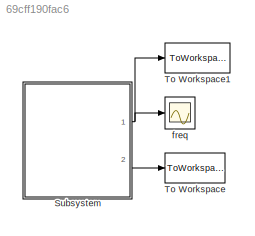
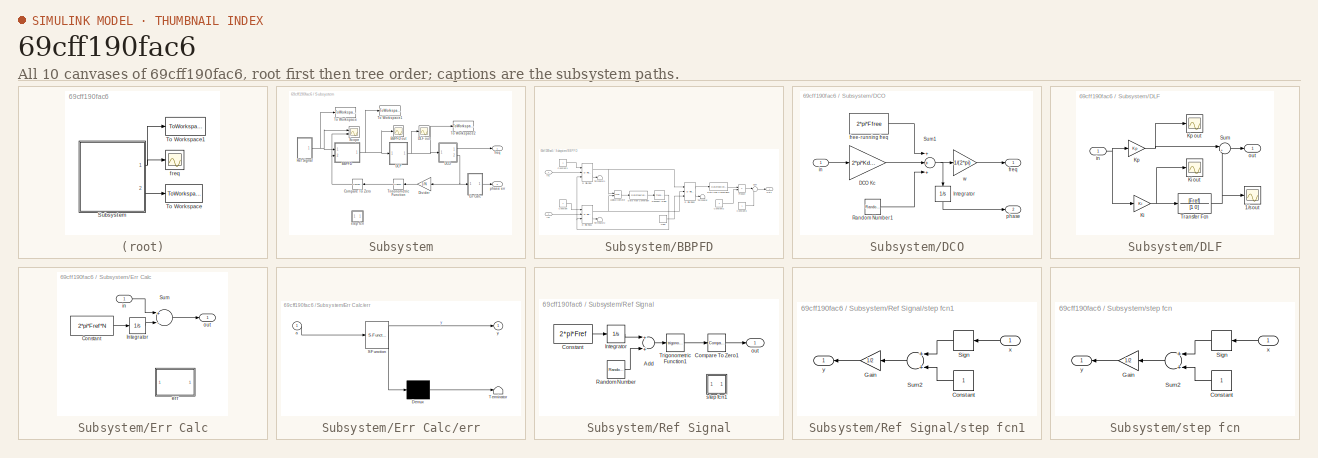
[diagram: thumbnail index - all 10 canvases of the model, root first then tree order]
MODEL slx_69cff190fac6
KIND model
CONFIG AbsTol = auto
CONFIG EnableMultiTasking = off
CONFIG FixedStep = 1/(12*4*Fref)
CONFIG MaxStep = auto
CONFIG MinStep = auto
CONFIG RelTol = 1e-3
CONFIG SampleTimeConstraint = Unconstrained
CONFIG Solver = VariableStepAuto
CONFIG SolverName = VariableStepAuto
CONFIG StartTime = 0.0
CONFIG StopTime = 4e-4
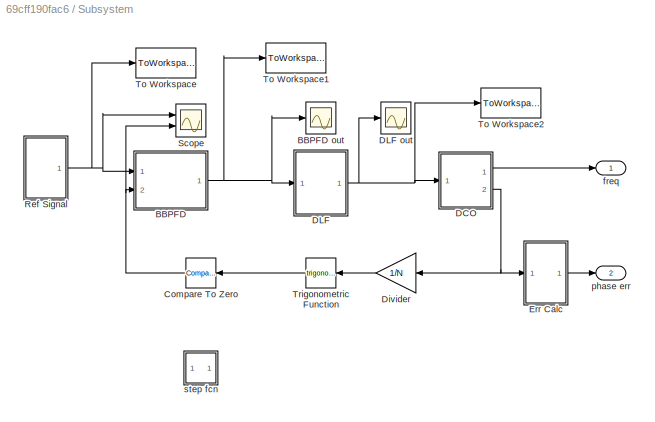
BLOCK [SubSystem] Subsystem
  Ports = [0, 2]
  RequestExecContextInheritance = off
  Variant = off
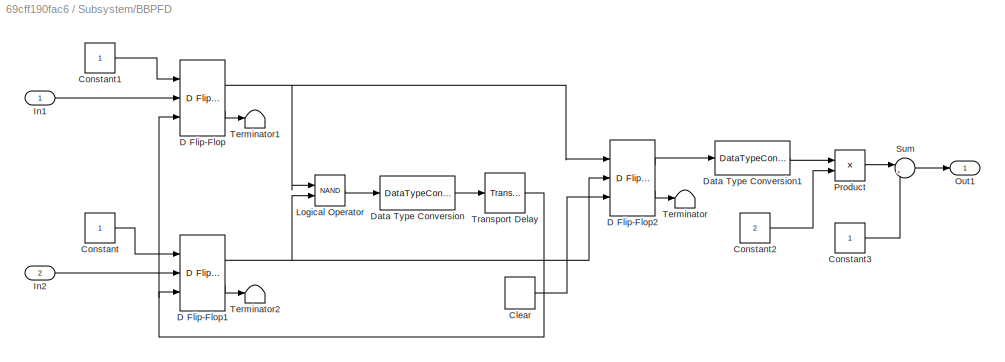
BLOCK [SubSystem] Subsystem/BBPFD
  Ports = [2, 1]
  RequestExecContextInheritance = off
  Variant = off
BLOCK [Scope] Subsystem/BBPFD out
  NumInputPorts = 1
  Ports = [1]
  ScopeSpecificationString = Simulink.scopes.TimeScopeBlockCfg('CurrentConfiguration', extmgr.ConfigurationSet(extmgr.Configuration('Core','General UI',true),extmgr.Configuration('Core','Source UI',true),extmgr.Configuration('Sources','WiredSimulink',true,'DataLoggingVariableName','ScopeData4'),extmgr.Configuration('Visuals','Time Domain',true,'SerializedDisplays',{struct('MinYLimReal','-1.25','MaxYLimReal','1.25','YLabelReal...<+1373ch>
BLOCK [DiscretePulseGenerator] Subsystem/BBPFD/Clear
  Period = 20
  Ports = [0, 1]
  PulseType = Time based
  PulseWidth = 50
BLOCK [Constant] Subsystem/BBPFD/Constant
  OutDataTypeStr = boolean
BLOCK [Constant] Subsystem/BBPFD/Constant1
  OutDataTypeStr = boolean
BLOCK [Constant] Subsystem/BBPFD/Constant2
  Value = 2
BLOCK [Constant] Subsystem/BBPFD/Constant3
BLOCK [Reference] Subsystem/BBPFD/D Flip-Flop  REF=simulink_extras/Flip Flops/D Flip-Flop
  Ports = [3, 2]
  SourceBlock = simulink_extras/Flip Flops/D Flip-Flop
  SourceProductBaseCode = SL
  SourceProductName = Simulink
  SourceType = DFlipFlop
BLOCK [Reference] Subsystem/BBPFD/D Flip-Flop1  REF=simulink_extras/Flip Flops/D Flip-Flop
  Ports = [3, 2]
  SourceBlock = simulink_extras/Flip Flops/D Flip-Flop
  SourceProductBaseCode = SL
  SourceProductName = Simulink
  SourceType = DFlipFlop
BLOCK [Reference] Subsystem/BBPFD/D Flip-Flop2  REF=simulink_extras/Flip Flops/D Flip-Flop
  Ports = [3, 2]
  SourceBlock = simulink_extras/Flip Flops/D Flip-Flop
  SourceProductBaseCode = SL
  SourceProductName = Simulink
  SourceType = DFlipFlop
BLOCK [DataTypeConversion] Subsystem/BBPFD/Data Type Conversion
  OutDataTypeStr = double
  RndMeth = Floor
  SaturateOnIntegerOverflow = off
BLOCK [DataTypeConversion] Subsystem/BBPFD/Data Type Conversion1
  OutDataTypeStr = int8
  RndMeth = Floor
  SaturateOnIntegerOverflow = off
BLOCK [Inport] Subsystem/BBPFD/In1
  IconDisplay = Port number
BLOCK [Inport] Subsystem/BBPFD/In2
  IconDisplay = Port number
  Port = 2
BLOCK [Logic] Subsystem/BBPFD/Logical Operator
  AllPortsSameDT = off
  Operator = NAND
  OutDataTypeStr = boolean
  Ports = [2, 1]
BLOCK [Outport] Subsystem/BBPFD/Out1
  IconDisplay = Port number
BLOCK [Product] Subsystem/BBPFD/Product
  InputSameDT = off
  OutDataTypeStr = Inherit: Inherit via internal rule
  Ports = [2, 1]
  RndMeth = Floor
  SaturateOnIntegerOverflow = off
BLOCK [Sum] Subsystem/BBPFD/Sum
  IconShape = round
  InputSameDT = off
  Inputs = |+-
  OutDataTypeStr = Inherit: Inherit via internal rule
  Ports = [2, 1]
  SaturateOnIntegerOverflow = off
BLOCK [Terminator] Subsystem/BBPFD/Terminator
BLOCK [Terminator] Subsystem/BBPFD/Terminator1
BLOCK [Terminator] Subsystem/BBPFD/Terminator2
BLOCK [TransportDelay] Subsystem/BBPFD/Transport Delay
  DelayTime = BBPFD_delay
  Ports = [1, 1]
BLOCK [Reference] Subsystem/Compare To Zero  REF=simulink/Logic and Bit
Operations/Compare
To Zero
  Ports = [1, 1]
  SourceBlock = simulink/Logic and Bit\nOperations/Compare\nTo Zero
  SourceProductBaseCode = SL
  SourceProductName = Simulink
  SourceType = Compare To Zero
BLOCK [SubSystem] Subsystem/DCO
  Ports = [1, 2]
  RequestExecContextInheritance = off
  Variant = off
BLOCK [Gain] Subsystem/DCO/DCO Kc
  Gain = 2*pi*Kdco
  OutDataTypeStr = Inherit: Inherit via internal rule
  ParamDataTypeStr = Inherit: Inherit via internal rule
  SaturateOnIntegerOverflow = off
BLOCK [Integrator] Subsystem/DCO/Integrator
  Ports = [1, 1]
BLOCK [RandomNumber] Subsystem/DCO/Random Number1
  SampleTime = 1/(Fref*4)
  Variance = DCONoise
BLOCK [Sum] Subsystem/DCO/Sum1
  InputSameDT = off
  Inputs = +++
  OutDataTypeStr = Inherit: Inherit via internal rule
  Ports = [3, 1]
  SaturateOnIntegerOverflow = off
BLOCK [Constant] Subsystem/DCO/free-running freq
  Value = 2*pi*Ffree
BLOCK [Outport] Subsystem/DCO/freq
  IconDisplay = Port number
BLOCK [Inport] Subsystem/DCO/in
  IconDisplay = Port number
BLOCK [Outport] Subsystem/DCO/phase
  IconDisplay = Port number
  Port = 2
BLOCK [Gain] Subsystem/DCO/w
  Gain = 1/(2*pi)
  OutDataTypeStr = Inherit: Inherit via internal rule
  ParamDataTypeStr = Inherit: Inherit via internal rule
  SaturateOnIntegerOverflow = off
BLOCK [SubSystem] Subsystem/DLF
  Ports = [1, 1]
  RequestExecContextInheritance = off
  Variant = off
BLOCK [Scope] Subsystem/DLF out
  NumInputPorts = 1
  Ports = [1]
  ScopeSpecificationString = Simulink.scopes.TimeScopeBlockCfg('CurrentConfiguration', extmgr.ConfigurationSet(extmgr.Configuration('Core','General UI',true),extmgr.Configuration('Core','Source UI',true),extmgr.Configuration('Sources','WiredSimulink',true,'DataLoggingVariableName','ScopeData5'),extmgr.Configuration('Visuals','Time Domain',true,'SerializedDisplays',{struct('MinYLimReal','-7.8507','MaxYLimReal','10.54834','YLab...<+1416ch>
BLOCK [Scope] Subsystem/DLF/1//s out
  Commented = on
  NumInputPorts = 1
  Ports = [1]
  ScopeSpecificationString = Simulink.scopes.TimeScopeBlockCfg('CurrentConfiguration', extmgr.ConfigurationSet(extmgr.Configuration('Core','General UI',true),extmgr.Configuration('Core','Source UI',true),extmgr.Configuration('Sources','WiredSimulink',true,'DataLoggingVariableName','ScopeData1'),extmgr.Configuration('Visuals','Time Domain',true),extmgr.Configuration('Tools','Plot Navigation',true),extmgr.Configuration('Tools',...<+40ch>
BLOCK [Gain] Subsystem/DLF/Ki
  Gain = Ki
  OutDataTypeStr = Inherit: Inherit via internal rule
  ParamDataTypeStr = Inherit: Inherit via internal rule
  SaturateOnIntegerOverflow = off
BLOCK [Scope] Subsystem/DLF/Ki out
  Commented = on
  NumInputPorts = 1
  Ports = [1]
  ScopeSpecificationString = Simulink.scopes.TimeScopeBlockCfg('CurrentConfiguration', extmgr.ConfigurationSet(extmgr.Configuration('Core','General UI',true),extmgr.Configuration('Core','Source UI',true),extmgr.Configuration('Sources','WiredSimulink',true,'DataLoggingVariableName','ScopeData2'),extmgr.Configuration('Visuals','Time Domain',true),extmgr.Configuration('Tools','Plot Navigation',true),extmgr.Configuration('Tools',...<+40ch>
BLOCK [Gain] Subsystem/DLF/Kp
  Gain = Kp
  OutDataTypeStr = Inherit: Inherit via internal rule
  ParamDataTypeStr = Inherit: Inherit via internal rule
  SaturateOnIntegerOverflow = off
BLOCK [Scope] Subsystem/DLF/Kp out
  Commented = on
  NumInputPorts = 1
  Ports = [1]
  ScopeSpecificationString = Simulink.scopes.TimeScopeBlockCfg('CurrentConfiguration', extmgr.ConfigurationSet(extmgr.Configuration('Core','General UI',true),extmgr.Configuration('Core','Source UI',true),extmgr.Configuration('Sources','WiredSimulink',true,'DataLoggingVariableName','ScopeData3'),extmgr.Configuration('Visuals','Time Domain',true),extmgr.Configuration('Tools','Plot Navigation',true),extmgr.Configuration('Tools',...<+40ch>
BLOCK [Sum] Subsystem/DLF/Sum
  IconShape = round
  InputSameDT = off
  Inputs = |++
  OutDataTypeStr = Inherit: Inherit via internal rule
  Ports = [2, 1]
  SaturateOnIntegerOverflow = off
BLOCK [TransferFcn] Subsystem/DLF/Transfer Fcn
  Denominator = [1 0]
  Numerator = [Fref]
BLOCK [Inport] Subsystem/DLF/in
  IconDisplay = Port number
BLOCK [Outport] Subsystem/DLF/out
  IconDisplay = Port number
BLOCK [Gain] Subsystem/Divider
  Gain = 1/N
  OutDataTypeStr = Inherit: Inherit via internal rule
  ParamDataTypeStr = Inherit: Inherit via internal rule
  SaturateOnIntegerOverflow = off
BLOCK [SubSystem] Subsystem/Err Calc
  Ports = [1, 1]
  RequestExecContextInheritance = off
  Variant = off
BLOCK [Constant] Subsystem/Err Calc/Constant
  Value = 2*pi*Fref*N
BLOCK [Integrator] Subsystem/Err Calc/Integrator
  Ports = [1, 1]
BLOCK [Sum] Subsystem/Err Calc/Sum
  InputSameDT = off
  Inputs = +-
  OutDataTypeStr = Inherit: Inherit via internal rule
  Ports = [2, 1]
  SaturateOnIntegerOverflow = off
BLOCK [SubSystem] Subsystem/Err Calc/err
  Commented = on
  ErrorFcn = Stateflow.Translate.translate
  PermitHierarchicalResolution = ExplicitOnly
  Ports = [1, 1]
  RequestExecContextInheritance = off
  SFBlockType = MATLAB Function
  TreatAsAtomicUnit = on
  Variant = off
BLOCK [Demux] Subsystem/Err Calc/err/ Demux 
  Outputs = 1
  Ports = [1, 1]
BLOCK [S-Function] Subsystem/Err Calc/err/ SFunction 
  EnableBusSupport = on
  FunctionName = sf_sfun
  PortCounts = [1 2]
  Ports = [1, 2]
  SFcnIsStateOwnerBlock = off
  SFunctionDeploymentMode = off
  Tag = Stateflow S-Function ADPLL 2
BLOCK [Terminator] Subsystem/Err Calc/err/ Terminator 
BLOCK [Inport] Subsystem/Err Calc/err/a
  IconDisplay = Port number
BLOCK [Outport] Subsystem/Err Calc/err/y
  IconDisplay = Port number
BLOCK [Inport] Subsystem/Err Calc/in
  IconDisplay = Port number
BLOCK [Outport] Subsystem/Err Calc/out
  IconDisplay = Port number
BLOCK [SubSystem] Subsystem/Ref Signal
  Ports = [0, 1]
  RequestExecContextInheritance = off
  Variant = off
BLOCK [Sum] Subsystem/Ref Signal/Add
  InputSameDT = off
  OutDataTypeStr = Inherit: Inherit via internal rule
  Ports = [2, 1]
  SaturateOnIntegerOverflow = off
BLOCK [Reference] Subsystem/Ref Signal/Compare To Zero1  REF=simulink/Logic and Bit
Operations/Compare
To Zero
  Ports = [1, 1]
  SourceBlock = simulink/Logic and Bit\nOperations/Compare\nTo Zero
  SourceProductBaseCode = SL
  SourceProductName = Simulink
  SourceType = Compare To Zero
BLOCK [Constant] Subsystem/Ref Signal/Constant
  Value = 2*pi*Fref
BLOCK [Integrator] Subsystem/Ref Signal/Integrator
  Ports = [1, 1]
BLOCK [RandomNumber] Subsystem/Ref Signal/Random Number
  SampleTime = 1/(4*Fref)
  Variance = RefNoise
BLOCK [Trigonometry] Subsystem/Ref Signal/Trigonometric Function1
  Ports = [1, 1]
BLOCK [Outport] Subsystem/Ref Signal/out
  IconDisplay = Port number
BLOCK [SubSystem] Subsystem/Ref Signal/step fcn1
  Commented = on
  Ports = [1, 1]
  RequestExecContextInheritance = off
  Variant = off
BLOCK [Constant] Subsystem/Ref Signal/step fcn1/Constant
BLOCK [Gain] Subsystem/Ref Signal/step fcn1/Gain
  Gain = 1/2
  OutDataTypeStr = Inherit: Inherit via internal rule
  ParamDataTypeStr = Inherit: Inherit via internal rule
  SaturateOnIntegerOverflow = off
BLOCK [Signum] Subsystem/Ref Signal/step fcn1/Sign
BLOCK [Sum] Subsystem/Ref Signal/step fcn1/Sum2
  InputSameDT = off
  OutDataTypeStr = Inherit: Inherit via internal rule
  Ports = [2, 1]
  SaturateOnIntegerOverflow = off
BLOCK [Inport] Subsystem/Ref Signal/step fcn1/x
  IconDisplay = Port number
BLOCK [Outport] Subsystem/Ref Signal/step fcn1/y
  IconDisplay = Port number
BLOCK [Scope] Subsystem/Scope
  NumInputPorts = 2
  Ports = [2]
  ScopeSpecificationString = Simulink.scopes.TimeScopeBlockCfg('CurrentConfiguration', extmgr.ConfigurationSet(extmgr.Configuration('Core','General UI',true),extmgr.Configuration('Core','Source UI',true),extmgr.Configuration('Sources','WiredSimulink',true),extmgr.Configuration('Visuals','Time Domain',true,'SerializedDisplays',{struct('MinYLimReal','-0.05439','MaxYLimReal','1.02503','YLabelReal','','MinYLimMag','0.00000','MaxY...<+2049ch>
BLOCK [ToWorkspace] Subsystem/To Workspace
  Commented = on
  FixptAsFi = on
  MaxDataPoints = inf
  Ports = [1]
  SampleTime = -1
  Save2DSignal = 3-D array (concatenate along third dimension)
  SaveFormat = Timeseries
  VariableName = ref_sig
BLOCK [ToWorkspace] Subsystem/To Workspace1
  Commented = on
  FixptAsFi = on
  MaxDataPoints = inf
  Ports = [1]
  SampleTime = -1
  Save2DSignal = 3-D array (concatenate along third dimension)
  SaveFormat = Timeseries
  VariableName = BBPFD_sig
BLOCK [ToWorkspace] Subsystem/To Workspace2
  FixptAsFi = on
  MaxDataPoints = inf
  Ports = [1]
  SampleTime = -1
  VariableName = DLF_sig
BLOCK [Trigonometry] Subsystem/Trigonometric Function
  Ports = [1, 1]
BLOCK [Outport] Subsystem/freq
  IconDisplay = Port number
BLOCK [Outport] Subsystem/phase err
  IconDisplay = Port number
  Port = 2
BLOCK [SubSystem] Subsystem/step fcn
  Commented = on
  Ports = [1, 1]
  RequestExecContextInheritance = off
  Variant = off
BLOCK [Constant] Subsystem/step fcn/Constant
BLOCK [Gain] Subsystem/step fcn/Gain
  Gain = 1/2
  OutDataTypeStr = Inherit: Inherit via internal rule
  ParamDataTypeStr = Inherit: Inherit via internal rule
  SaturateOnIntegerOverflow = off
BLOCK [Signum] Subsystem/step fcn/Sign
BLOCK [Sum] Subsystem/step fcn/Sum2
  InputSameDT = off
  OutDataTypeStr = Inherit: Inherit via internal rule
  Ports = [2, 1]
  SaturateOnIntegerOverflow = off
BLOCK [Inport] Subsystem/step fcn/x
  IconDisplay = Port number
BLOCK [Outport] Subsystem/step fcn/y
  IconDisplay = Port number
BLOCK [ToWorkspace] To Workspace
  FixptAsFi = on
  MaxDataPoints = inf
  Ports = [1]
  SampleTime = -1
  VariableName = phs_err
BLOCK [ToWorkspace] To Workspace1
  FixptAsFi = on
  MaxDataPoints = inf
  Ports = [1]
  SampleTime = -1
  VariableName = out_freq
BLOCK [Scope] freq
  Commented = on
  NumInputPorts = 1
  Ports = [1]
  ScopeSpecificationString = Simulink.scopes.TimeScopeBlockCfg('CurrentConfiguration', extmgr.ConfigurationSet(extmgr.Configuration('Core','General UI',true),extmgr.Configuration('Core','Source UI',true),extmgr.Configuration('Sources','WiredSimulink',true,'DataLoggingVariableName','ScopeData2'),extmgr.Configuration('Visuals','Time Domain',true,'SerializedDisplays',{struct('MinYLimReal','245337129.71038','MaxYLimReal','2744531...<+1505ch>
LINE Subsystem/BBPFD/Clear:1 -> Subsystem/BBPFD/D Flip-Flop2:3
LINE Subsystem/BBPFD/Constant1:1 -> Subsystem/BBPFD/D Flip-Flop:1
LINE Subsystem/BBPFD/Constant2:1 -> Subsystem/BBPFD/Product:2
LINE Subsystem/BBPFD/Constant3:1 -> Subsystem/BBPFD/Sum:2
LINE Subsystem/BBPFD/Constant:1 -> Subsystem/BBPFD/D Flip-Flop1:1
NET Subsystem/BBPFD/D Flip-Flop1:1 -> Subsystem/BBPFD/D Flip-Flop2:2, Subsystem/BBPFD/Logical Operator:2
LINE Subsystem/BBPFD/D Flip-Flop1:2 -> Subsystem/BBPFD/Terminator2:1
LINE Subsystem/BBPFD/D Flip-Flop2:1 -> Subsystem/BBPFD/Data Type Conversion1:1
LINE Subsystem/BBPFD/D Flip-Flop2:2 -> Subsystem/BBPFD/Terminator:1
NET Subsystem/BBPFD/D Flip-Flop:1 -> Subsystem/BBPFD/D Flip-Flop2:1, Subsystem/BBPFD/Logical Operator:1
LINE Subsystem/BBPFD/D Flip-Flop:2 -> Subsystem/BBPFD/Terminator1:1
LINE Subsystem/BBPFD/Data Type Conversion1:1 -> Subsystem/BBPFD/Product:1
LINE Subsystem/BBPFD/Data Type Conversion:1 -> Subsystem/BBPFD/Transport Delay:1
LINE Subsystem/BBPFD/In1:1 -> Subsystem/BBPFD/D Flip-Flop:2
LINE Subsystem/BBPFD/In2:1 -> Subsystem/BBPFD/D Flip-Flop1:2
LINE Subsystem/BBPFD/Logical Operator:1 -> Subsystem/BBPFD/Data Type Conversion:1
LINE Subsystem/BBPFD/Product:1 -> Subsystem/BBPFD/Sum:1
LINE Subsystem/BBPFD/Sum:1 -> Subsystem/BBPFD/Out1:1
NET Subsystem/BBPFD/Transport Delay:1 -> Subsystem/BBPFD/D Flip-Flop1:3, Subsystem/BBPFD/D Flip-Flop:3
NET Subsystem/BBPFD:1 -> Subsystem/BBPFD out:1, Subsystem/DLF:1, Subsystem/To Workspace1:1
NET Subsystem/Compare To Zero:1 -> Subsystem/BBPFD:2, Subsystem/Scope:2
LINE Subsystem/DCO/DCO Kc:1 -> Subsystem/DCO/Sum1:2
LINE Subsystem/DCO/Integrator:1 -> Subsystem/DCO/phase:1
LINE Subsystem/DCO/Random Number1:1 -> Subsystem/DCO/Sum1:3
NET Subsystem/DCO/Sum1:1 -> Subsystem/DCO/Integrator:1, Subsystem/DCO/w:1
LINE Subsystem/DCO/free-running freq:1 -> Subsystem/DCO/Sum1:1
LINE Subsystem/DCO/in:1 -> Subsystem/DCO/DCO Kc:1
LINE Subsystem/DCO/w:1 -> Subsystem/DCO/freq:1
LINE Subsystem/DCO:1 -> Subsystem/freq:1
NET Subsystem/DCO:2 -> Subsystem/Divider:1, Subsystem/Err Calc:1
NET Subsystem/DLF/Ki:1 -> Subsystem/DLF/Ki out:1, Subsystem/DLF/Transfer Fcn:1
NET Subsystem/DLF/Kp:1 -> Subsystem/DLF/Kp out:1, Subsystem/DLF/Sum:1
LINE Subsystem/DLF/Sum:1 -> Subsystem/DLF/out:1
NET Subsystem/DLF/Transfer Fcn:1 -> Subsystem/DLF/1//s out:1, Subsystem/DLF/Sum:2
NET Subsystem/DLF/in:1 -> Subsystem/DLF/Ki:1, Subsystem/DLF/Kp:1
NET Subsystem/DLF:1 -> Subsystem/DCO:1, Subsystem/DLF out:1, Subsystem/To Workspace2:1
LINE Subsystem/Divider:1 -> Subsystem/Trigonometric Function:1
LINE Subsystem/Err Calc/Constant:1 -> Subsystem/Err Calc/Integrator:1
LINE Subsystem/Err Calc/Integrator:1 -> Subsystem/Err Calc/Sum:2
LINE Subsystem/Err Calc/Sum:1 -> Subsystem/Err Calc/out:1
LINE Subsystem/Err Calc/in:1 -> Subsystem/Err Calc/Sum:1
LINE Subsystem/Err Calc:1 -> Subsystem/phase err:1
LINE Subsystem/Ref Signal/Add:1 -> Subsystem/Ref Signal/Trigonometric Function1:1
LINE Subsystem/Ref Signal/Compare To Zero1:1 -> Subsystem/Ref Signal/out:1
LINE Subsystem/Ref Signal/Constant:1 -> Subsystem/Ref Signal/Integrator:1
LINE Subsystem/Ref Signal/Integrator:1 -> Subsystem/Ref Signal/Add:1
LINE Subsystem/Ref Signal/Random Number:1 -> Subsystem/Ref Signal/Add:2
LINE Subsystem/Ref Signal/Trigonometric Function1:1 -> Subsystem/Ref Signal/Compare To Zero1:1
LINE Subsystem/Ref Signal/step fcn1/Constant:1 -> Subsystem/Ref Signal/step fcn1/Sum2:2
LINE Subsystem/Ref Signal/step fcn1/Gain:1 -> Subsystem/Ref Signal/step fcn1/y:1
LINE Subsystem/Ref Signal/step fcn1/Sign:1 -> Subsystem/Ref Signal/step fcn1/Sum2:1
LINE Subsystem/Ref Signal/step fcn1/Sum2:1 -> Subsystem/Ref Signal/step fcn1/Gain:1
LINE Subsystem/Ref Signal/step fcn1/x:1 -> Subsystem/Ref Signal/step fcn1/Sign:1
NET Subsystem/Ref Signal:1 -> Subsystem/BBPFD:1, Subsystem/Scope:1, Subsystem/To Workspace:1
LINE Subsystem/Trigonometric Function:1 -> Subsystem/Compare To Zero:1
LINE Subsystem/step fcn/Constant:1 -> Subsystem/step fcn/Sum2:2
LINE Subsystem/step fcn/Gain:1 -> Subsystem/step fcn/y:1
LINE Subsystem/step fcn/Sign:1 -> Subsystem/step fcn/Sum2:1
LINE Subsystem/step fcn/Sum2:1 -> Subsystem/step fcn/Gain:1
LINE Subsystem/step fcn/x:1 -> Subsystem/step fcn/Sign:1
NET Subsystem:1 -> To Workspace1:1, freq:1
LINE Subsystem:2 -> To Workspace:1
note: NET lines group one-source signal fan-out (src -> all destinations, sorted); 1:1 wires keep LINE
CHART Subsystem/Err Calc/err states=1 transitions=1
  STATE_LABEL 'eML_blk_kernel()'
  STATE_LABEL 'SCRIPT:\nfunction y = fcn(a)\ntemp = rem(a,2*pi);\ny = temp - (2*pi)*(temp>pi);\n'
